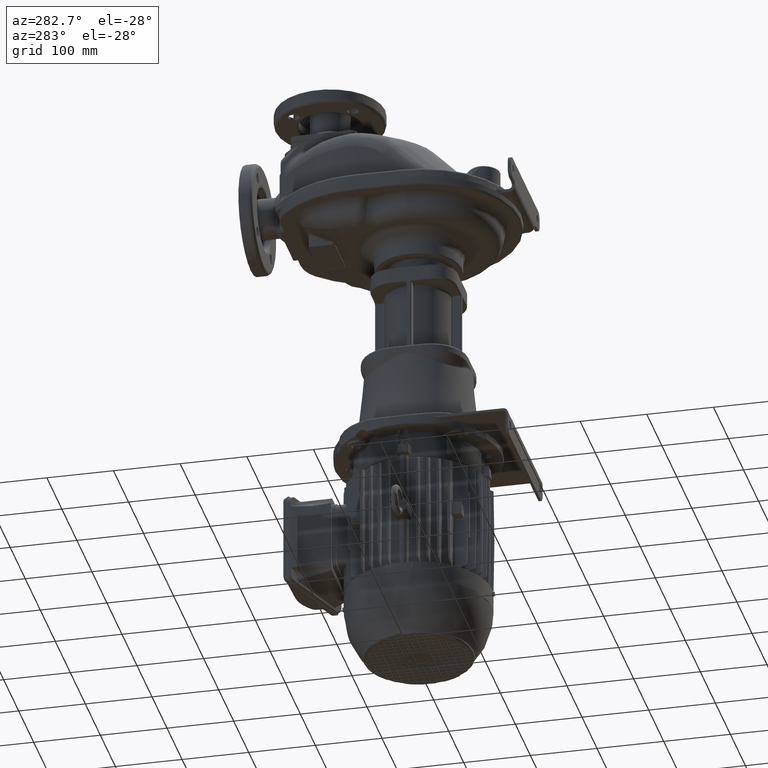
[diagram: clean part render]
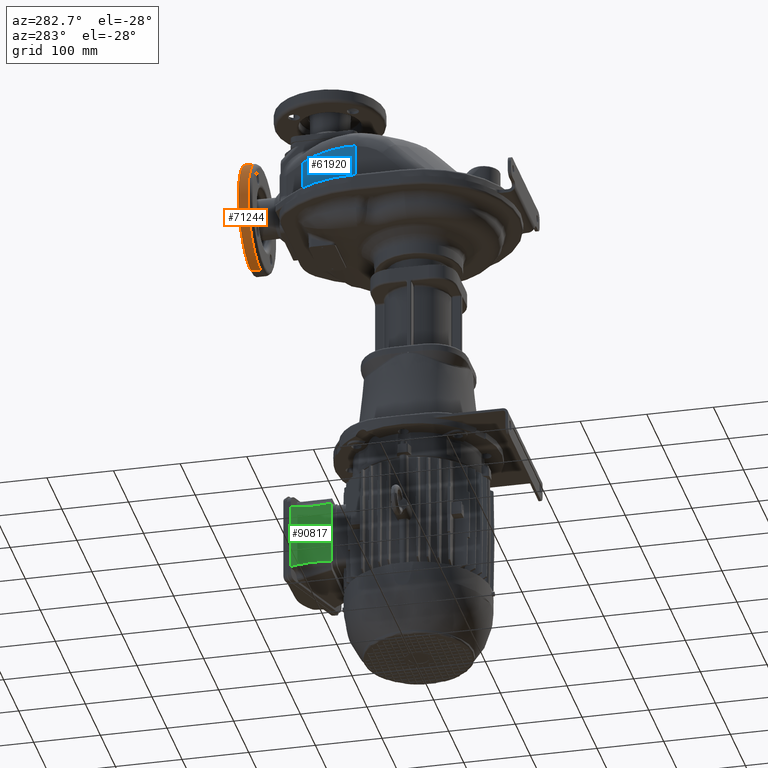
[diagram: same view with three faces highlighted in distinct colors, each labeled with its STEP entity id]
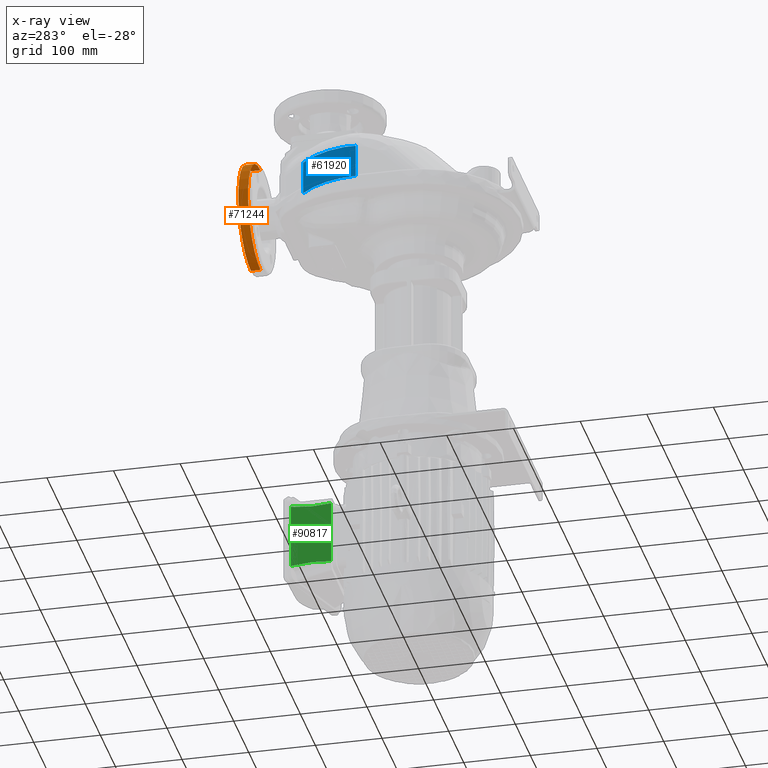
[diagram: x-ray of the same camera — body ghosted, the three highlighted faces saturated]
A machine part, auxiliary view with three faces highlighted in distinct colors.
The next image is the same camera in x-ray (body ghosted, the three faces saturated) — at least one of them is partly hidden behind the body in this view.
Their STEP definitions:

[orange] entity #71244 — the highlighted cylindrical surface (partial cylindrical patch) has radius 82.5 mm, axis along (0, 1, 0).
#7987=CARTESIAN_POINT('',(4.3E1,2.47E2,5.05E1));
#7988=DIRECTION('',(0.E0,1.E0,0.E0));
#7989=DIRECTION('',(0.E0,0.E0,-1.E0));
#7990=AXIS2_PLACEMENT_3D('',#7987,#7988,#7989);
#7992=CARTESIAN_POINT('',(4.3E1,2.615E2,5.05E1));
#7993=DIRECTION('',(0.E0,1.E0,0.E0));
#7994=DIRECTION('',(0.E0,0.E0,-1.E0));
#7995=AXIS2_PLACEMENT_3D('',#7992,#7993,#7994);
#7997=DIRECTION('',(0.E0,-1.E0,0.E0));
#7998=VECTOR('',#7997,1.45E1);
#7999=CARTESIAN_POINT('',(4.3E1,2.615E2,-3.2E1));
#8000=LINE('',#7999,#7998);
#8001=DIRECTION('',(0.E0,-1.E0,0.E0));
#8002=VECTOR('',#8001,1.45E1);
#8003=CARTESIAN_POINT('',(4.3E1,2.615E2,1.33E2));
#8004=LINE('',#8003,#8002);
#53293=CARTESIAN_POINT('',(4.3E1,2.615E2,-3.2E1));
#53294=CARTESIAN_POINT('',(4.3E1,2.47E2,-3.2E1));
#53295=VERTEX_POINT('',#53293);
#53296=VERTEX_POINT('',#53294);
#53313=CARTESIAN_POINT('',(4.3E1,2.615E2,1.33E2));
#53314=CARTESIAN_POINT('',(4.3E1,2.47E2,1.33E2));
#53315=VERTEX_POINT('',#53313);
#53316=VERTEX_POINT('',#53314);
#71230=CARTESIAN_POINT('',(4.3E1,2.2E2,5.05E1));
#71231=DIRECTION('',(0.E0,1.E0,0.E0));
#71232=DIRECTION('',(0.E0,0.E0,1.E0));
#71233=AXIS2_PLACEMENT_3D('',#71230,#71231,#71232);
#71234=CYLINDRICAL_SURFACE('',#71233,8.25E1);
#71236=ORIENTED_EDGE('',*,*,#71235,.F.);
#71238=ORIENTED_EDGE('',*,*,#71237,.T.);
#71240=ORIENTED_EDGE('',*,*,#71239,.T.);
#71241=ORIENTED_EDGE('',*,*,#71216,.F.);
#71242=EDGE_LOOP('',(#71236,#71238,#71240,#71241));
#71243=FACE_OUTER_BOUND('',#71242,.F.);
#7991=CIRCLE('',#7990,8.25E1);
#7996=CIRCLE('',#7995,8.25E1);
#71216=EDGE_CURVE('',#53296,#53316,#7991,.T.);
#71235=EDGE_CURVE('',#53295,#53296,#8000,.T.);
#71237=EDGE_CURVE('',#53295,#53315,#7996,.T.);
#71239=EDGE_CURVE('',#53315,#53316,#8004,.T.);
#71244=ADVANCED_FACE('',(#71243),#71234,.T.);

[blue] entity #61920 — the highlighted cylindrical surface (partial cylindrical patch) has radius 123 mm, axis along (0, 0, -1).
#1145=CARTESIAN_POINT('',(1.E1,6.9E1,2.2E1));
#1146=DIRECTION('',(0.E0,0.E0,-1.E0));
#1147=DIRECTION('',(-1.E0,0.E0,0.E0));
#1148=AXIS2_PLACEMENT_3D('',#1145,#1146,#1147);
#1150=CARTESIAN_POINT('',(1.E1,6.9E1,7.25E1));
#1151=DIRECTION('',(0.E0,0.E0,-1.E0));
#1152=DIRECTION('',(-9.911669960465E-1,1.326197042225E-1,0.E0));
#1153=AXIS2_PLACEMENT_3D('',#1150,#1151,#1152);
#1155=CARTESIAN_POINT('',(-1.13E2,6.9E1,7.171467519163E1));
#1156=CARTESIAN_POINT('',(-1.129999998096E2,6.971902179462E1,7.177866901427E1));
#1157=CARTESIAN_POINT('',(-1.129873918621E2,7.114795059395E1,7.189934351599E1));
#1158=CARTESIAN_POINT('',(-1.129320739442E2,7.326366992636E1,7.205776029551E1));
#1159=CARTESIAN_POINT('',(-1.128417954658E2,7.535043441461E1,7.219290466969E1));
#1160=CARTESIAN_POINT('',(-1.127180225027E2,7.740730537976E1,7.230426852271E1));
#1161=CARTESIAN_POINT('',(-1.125622356861E2,7.943337220049E1,7.239139978186E1));
#1162=CARTESIAN_POINT('',(-1.123759290055E2,8.142779116559E1,7.245393082908E1));
#1163=CARTESIAN_POINT('',(-1.121606145313E2,8.338967963111E1,7.249160142282E1));
#1164=CARTESIAN_POINT('',(-1.119987852654E2,8.467512482397E1,7.249999981833E1));
#1165=CARTESIAN_POINT('',(-1.119135405137E2,8.531222361933E1,7.25E1));
#1167=DIRECTION('',(0.E0,2.641809863418E-12,1.E0));
#1168=VECTOR('',#1167,4.971467519163E1);
#1169=CARTESIAN_POINT('',(-1.13E2,6.899999999987E1,2.2E1));
#1170=LINE('',#1169,#1168);
#1214=CARTESIAN_POINT('',(-1.13E2,6.9E1,7.171467519163E1));
#8484=DIRECTION('',(-9.880061565361E-13,-9.877247534725E-13,1.E0));
#8485=VECTOR('',#8484,5.05E1);
#8486=CARTESIAN_POINT('',(-7.697413408586E1,1.559741340860E2,2.2E1));
#8487=LINE('',#8486,#8485);
#52346=VERTEX_POINT('',#1214);
#52348=CARTESIAN_POINT('',(-1.119135405137E2,8.531222361937E1,7.25E1));
#52349=CARTESIAN_POINT('',(-7.697413408595E1,1.559741340859E2,7.25E1));
#52350=VERTEX_POINT('',#52348);
#52351=VERTEX_POINT('',#52349);
#52405=CARTESIAN_POINT('',(-7.697413408586E1,1.559741340860E2,2.2E1));
#52407=VERTEX_POINT('',#52405);
#52413=CARTESIAN_POINT('',(-1.13E2,6.9E1,2.2E1));
#52414=VERTEX_POINT('',#52413);
#61904=CARTESIAN_POINT('',(1.E1,6.9E1,0.E0));
#61905=DIRECTION('',(0.E0,0.E0,-1.E0));
#61906=DIRECTION('',(-1.E0,0.E0,0.E0));
#61907=AXIS2_PLACEMENT_3D('',#61904,#61905,#61906);
#61908=CYLINDRICAL_SURFACE('',#61907,1.23E2);
#61910=ORIENTED_EDGE('',*,*,#61909,.T.);
#61912=ORIENTED_EDGE('',*,*,#61911,.T.);
#61913=ORIENTED_EDGE('',*,*,#61888,.F.);
#61915=ORIENTED_EDGE('',*,*,#61914,.F.);
#61917=ORIENTED_EDGE('',*,*,#61916,.F.);
#61918=EDGE_LOOP('',(#61910,#61912,#61913,#61915,#61917));
#61919=FACE_OUTER_BOUND('',#61918,.F.);
#1149=CIRCLE('',#1148,1.23E2);
#1154=CIRCLE('',#1153,1.23E2);
#1166=B_SPLINE_CURVE_WITH_KNOTS('',3,(#1155,#1156,#1157,#1158,#1159,#1160,#1161,
#1162,#1163,#1164,#1165),.UNSPECIFIED.,.F.,.F.,(4,1,1,1,1,1,1,1,4),(0.E0,
1.25E-1,2.5E-1,3.75E-1,5.E-1,6.25E-1,7.5E-1,8.75E-1,1.E0),.UNSPECIFIED.);
#61888=EDGE_CURVE('',#52350,#52351,#1154,.T.);
#61909=EDGE_CURVE('',#52414,#52407,#1149,.T.);
#61911=EDGE_CURVE('',#52407,#52351,#8487,.T.);
#61914=EDGE_CURVE('',#52346,#52350,#1166,.T.);
#61916=EDGE_CURVE('',#52414,#52346,#1170,.T.);
#61920=ADVANCED_FACE('',(#61919),#61908,.T.);

[green] entity #90817 — the highlighted planar face has unit normal (-1, 0, 0).
#18329=DIRECTION('',(0.E0,0.E0,-1.E0));
#18330=VECTOR('',#18329,9.596717450037E1);
#18331=CARTESIAN_POINT('',(-5.752760610191E1,1.185E2,-4.860664127498E2));
#18332=LINE('',#18331,#18330);
#21733=DIRECTION('',(0.E0,0.E0,1.E0));
#21734=VECTOR('',#21733,9.874376342764E1);
#21735=CARTESIAN_POINT('',(-5.752760610191E1,1.787628472187E2,
-5.834218817138E2));
#21736=LINE('',#21735,#21734);
#21797=DIRECTION('',(-2.776955608327E-14,9.865492233163E-1,1.634644608898E-1));
#21798=VECTOR('',#21797,5.373293475135E0);
#21799=CARTESIAN_POINT('',(-5.752760610191E1,1.734618287142E2,
-4.855564608073E2));
#21800=LINE('',#21799,#21798);
#21801=CARTESIAN_POINT('',(-5.752760610191E1,1.185E2,-4.860664127498E2));
#21802=CARTESIAN_POINT('',(-5.752760610191E1,1.192373328019E2,
-4.861712707865E2));
#21803=CARTESIAN_POINT('',(-5.752760610191E1,1.207678219062E2,
-4.863777865080E2));
#21804=CARTESIAN_POINT('',(-5.752760610191E1,1.232107313478E2,
-4.866706595214E2));
#21805=CARTESIAN_POINT('',(-5.752760610191E1,1.258646119846E2,
-4.869481156355E2));
#21806=CARTESIAN_POINT('',(-5.752760610191E1,1.286893076368E2,
-4.871982886020E2));
#21807=CARTESIAN_POINT('',(-5.752760610191E1,1.315721119115E2,
-4.874079024102E2));
#21808=CARTESIAN_POINT('',(-5.752760610191E1,1.345274564364E2,
-4.875767349909E2));
#21809=CARTESIAN_POINT('',(-5.752760610191E1,1.375423002668E2,
-4.877022326165E2));
#21810=CARTESIAN_POINT('',(-5.752760610191E1,1.405906355901E2,
-4.877823114377E2));
#21811=CARTESIAN_POINT('',(-5.752760610191E1,1.436580941066E2,
-4.878160173189E2));
#21812=CARTESIAN_POINT('',(-5.752760610191E1,1.467258262763E2,
-4.878028021442E2));
#21813=CARTESIAN_POINT('',(-5.752760610191E1,1.497822819863E2,
-4.877427334475E2));
#21814=CARTESIAN_POINT('',(-5.752760610191E1,1.528109051856E2,
-4.876367890072E2));
#21815=CARTESIAN_POINT('',(-5.752760610191E1,1.557936620582E2,
-4.874865467086E2));
#21816=CARTESIAN_POINT('',(-5.752760610191E1,1.587158361470E2,
-4.872940260610E2));
#21817=CARTESIAN_POINT('',(-5.752760610191E1,1.615623673254E2,
-4.870617150377E2));
#21818=CARTESIAN_POINT('',(-5.752760610191E1,1.642984138527E2,
-4.867946522392E2));
#21819=CARTESIAN_POINT('',(-5.752760610191E1,1.668315133960E2,
-4.865076854466E2));
#21820=CARTESIAN_POINT('',(-5.752760610191E1,1.691883499870E2,
-4.862050289567E2));
#21821=CARTESIAN_POINT('',(-5.752760610191E1,1.713957892355E2,
-4.858885545092E2));
#21822=CARTESIAN_POINT('',(-5.752760610191E1,1.727874771743E2,
-4.856681896761E2));
#21823=CARTESIAN_POINT('',(-5.752760610191E1,1.734618287142E2,
-4.855564608073E2));
#21825=CARTESIAN_POINT('',(-5.752760610191E1,1.734618222656E2,
-5.825435381242E2));
#21826=CARTESIAN_POINT('',(-5.752760610191E1,1.727878917727E2,
-5.824318722228E2));
#21827=CARTESIAN_POINT('',(-5.752760610191E1,1.713968465623E2,
-5.822115943543E2));
#21828=CARTESIAN_POINT('',(-5.752760610191E1,1.691901389542E2,
-5.818951967115E2));
#21829=CARTESIAN_POINT('',(-5.752760610191E1,1.668326925424E2,
-5.815924657256E2));
#21830=CARTESIAN_POINT('',(-5.752760610191E1,1.643030785515E2,
-5.813058472809E2));
#21831=CARTESIAN_POINT('',(-5.752760610191E1,1.615625253085E2,
-5.810382773487E2));
#21832=CARTESIAN_POINT('',(-5.752760610191E1,1.587133695246E2,
-5.808057953167E2));
#21833=CARTESIAN_POINT('',(-5.752760610191E1,1.557965000351E2,
-5.806136241564E2));
#21834=CARTESIAN_POINT('',(-5.752760610191E1,1.528127065726E2,
-5.804632690826E2));
#21835=CARTESIAN_POINT('',(-5.752760610191E1,1.497809933207E2,
-5.803572189519E2));
#21836=CARTESIAN_POINT('',(-5.752760610191E1,1.467217087944E2,
-5.802971505209E2));
#21837=CARTESIAN_POINT('',(-5.752760610191E1,1.436545289337E2,
-5.802839805681E2));
#21838=CARTESIAN_POINT('',(-5.752760610191E1,1.405836627895E2,
-5.803177920527E2));
#21839=CARTESIAN_POINT('',(-5.752760610191E1,1.375338171179E2,
-5.803980610506E2));
#21840=CARTESIAN_POINT('',(-5.752760610191E1,1.345225106241E2,
-5.805235304824E2));
#21841=CARTESIAN_POINT('',(-5.752760610191E1,1.315690699413E2,
-5.806922972460E2));
#21842=CARTESIAN_POINT('',(-5.752760610191E1,1.286863802098E2,
-5.809019473205E2));
#21843=CARTESIAN_POINT('',(-5.752760610191E1,1.258636765266E2,
-5.811519801223E2));
#21844=CARTESIAN_POINT('',(-5.752760610191E1,1.232107353501E2,
-5.814293362987E2));
#21845=CARTESIAN_POINT('',(-5.752760610191E1,1.207673407630E2,
-5.817222725411E2));
#21846=CARTESIAN_POINT('',(-5.752760610191E1,1.192371558618E2,
-5.819287542185E2));
#21847=CARTESIAN_POINT('',(-5.752760610191E1,1.185E2,-5.820335872502E2));
#21849=DIRECTION('',(0.E0,-9.865492233164E-1,1.634644608890E-1));
#21850=VECTOR('',#21849,5.373300011677E0);
#21851=CARTESIAN_POINT('',(-5.752760610191E1,1.787628472187E2,
-5.834218817138E2));
#21852=LINE('',#21851,#21850);
#21880=CARTESIAN_POINT('',(-5.752760610191E1,1.185E2,-4.860664127498E2));
#22381=CARTESIAN_POINT('',(-5.752760610191E1,1.185E2,-5.820335872502E2));
#57794=VERTEX_POINT('',#22381);
#57798=CARTESIAN_POINT('',(-5.752760610191E1,1.787628472187E2,
-5.834218817138E2));
#57799=CARTESIAN_POINT('',(-5.752760610191E1,1.787628472187E2,
-4.846781182862E2));
#57800=VERTEX_POINT('',#57798);
#57801=VERTEX_POINT('',#57799);
#57802=VERTEX_POINT('',#21880);
#57804=VERTEX_POINT('',#21825);
#57805=VERTEX_POINT('',#21823);
#90800=CARTESIAN_POINT('',(-5.752760610191E1,1.185E2,-4.744697688290E2));
#90801=DIRECTION('',(-1.E0,0.E0,0.E0));
#90802=DIRECTION('',(0.E0,0.E0,1.E0));
#90803=AXIS2_PLACEMENT_3D('',#90800,#90801,#90802);
#90804=PLANE('',#90803);
#90805=ORIENTED_EDGE('',*,*,#90767,.T.);
#90807=ORIENTED_EDGE('',*,*,#90806,.F.);
#90809=ORIENTED_EDGE('',*,*,#90808,.F.);
#90810=ORIENTED_EDGE('',*,*,#85973,.T.);
#90812=ORIENTED_EDGE('',*,*,#90811,.F.);
#90814=ORIENTED_EDGE('',*,*,#90813,.F.);
#90815=EDGE_LOOP('',(#90805,#90807,#90809,#90810,#90812,#90814));
#90816=FACE_OUTER_BOUND('',#90815,.F.);
#21824=B_SPLINE_CURVE_WITH_KNOTS('',3,(#21801,#21802,#21803,#21804,#21805,
#21806,#21807,#21808,#21809,#21810,#21811,#21812,#21813,#21814,#21815,#21816,
#21817,#21818,#21819,#21820,#21821,#21822,#21823),.UNSPECIFIED.,.F.,.F.,(4,1,1,
1,1,1,1,1,1,1,1,1,1,1,1,1,1,1,1,1,4),(0.E0,5.E-2,1.E-1,1.5E-1,2.E-1,2.5E-1,
3.E-1,3.5E-1,4.E-1,4.5E-1,5.E-1,5.5E-1,6.E-1,6.5E-1,7.E-1,7.5E-1,8.E-1,8.5E-1,
9.E-1,9.5E-1,1.E0),.UNSPECIFIED.);
#21848=B_SPLINE_CURVE_WITH_KNOTS('',3,(#21825,#21826,#21827,#21828,#21829,
#21830,#21831,#21832,#21833,#21834,#21835,#21836,#21837,#21838,#21839,#21840,
#21841,#21842,#21843,#21844,#21845,#21846,#21847),.UNSPECIFIED.,.F.,.F.,(4,1,1,
1,1,1,1,1,1,1,1,1,1,1,1,1,1,1,1,1,4),(0.E0,5.E-2,1.E-1,1.5E-1,2.E-1,2.5E-1,
3.E-1,3.5E-1,4.E-1,4.5E-1,5.E-1,5.5E-1,6.E-1,6.5E-1,7.E-1,7.5E-1,8.E-1,8.5E-1,
9.E-1,9.5E-1,1.E0),.UNSPECIFIED.);
#85973=EDGE_CURVE('',#57802,#57794,#18332,.T.);
#90767=EDGE_CURVE('',#57800,#57801,#21736,.T.);
#90806=EDGE_CURVE('',#57805,#57801,#21800,.T.);
#90808=EDGE_CURVE('',#57802,#57805,#21824,.T.);
#90811=EDGE_CURVE('',#57804,#57794,#21848,.T.);
#90813=EDGE_CURVE('',#57800,#57804,#21852,.T.);
#90817=ADVANCED_FACE('',(#90816),#90804,.T.);